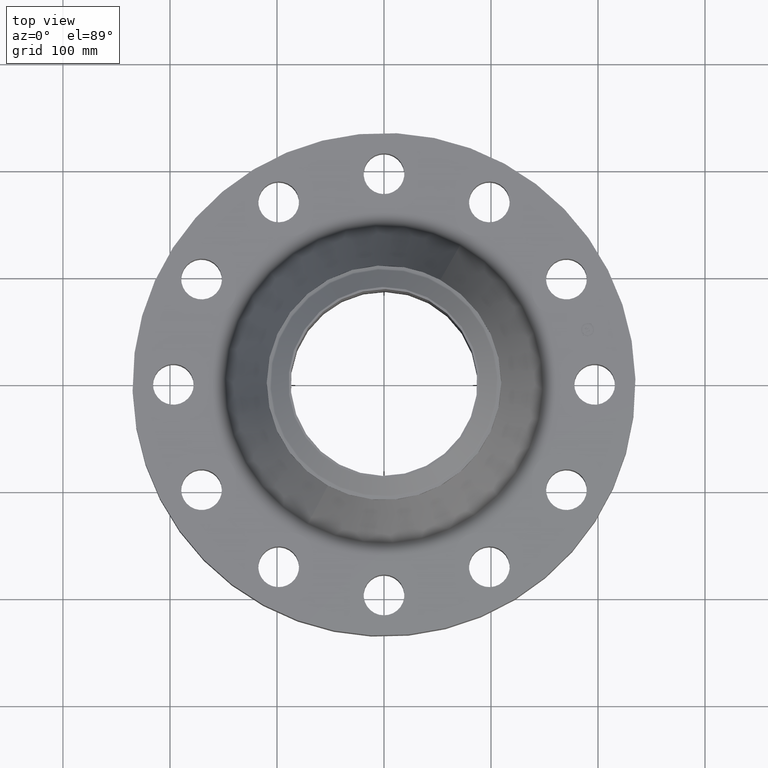
[diagram: clean part render]
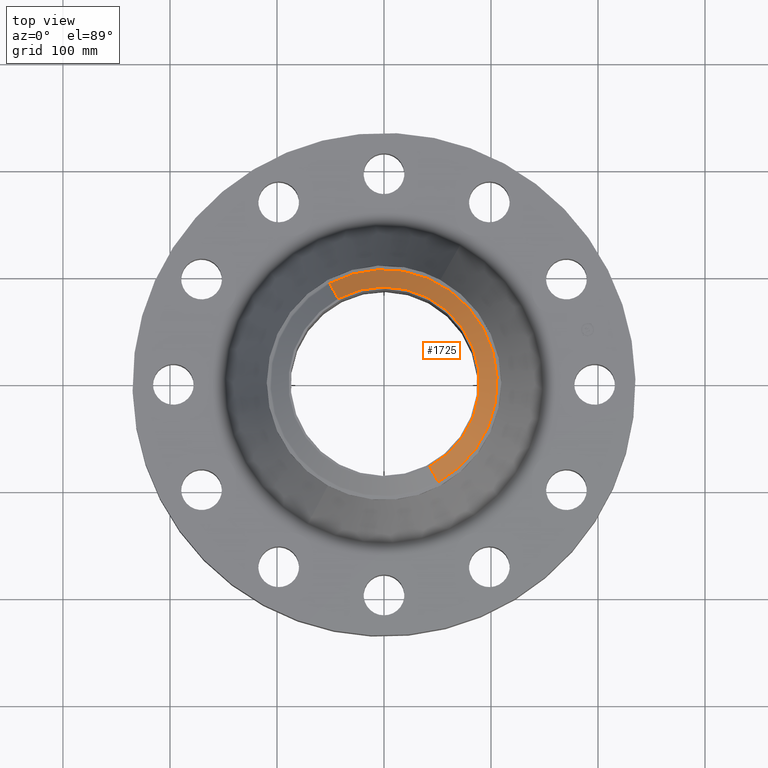
[diagram: same view with one face highlighted and labeled with its STEP entity id]
A machine part, top view. The second image highlights one B-rep face of the part: STEP entity #1725.
In plain terms, the highlighted conical surface has half-angle 52.5 deg.
Its self-contained STEP definition (entity closure, byte-faithful):
#1426=AXIS2_PLACEMENT_3D('Circle Axis2P3D',#1424,#1425,$) ;
#1698=AXIS2_PLACEMENT_3D('Cone Axis2P3D',#1695,#1696,#1697) ;
#1709=AXIS2_PLACEMENT_3D('Circle Axis2P3D',#1707,#1708,$) ;
#1424=CARTESIAN_POINT('Axis2P3D Location',(-2.79741234551E-016,2.82130224694E-011,6.38000000003)) ;
#1428=CARTESIAN_POINT('Vertex',(1.68577533137,-3.08579104563,6.38000000003)) ;
#1430=CARTESIAN_POINT('Vertex',(-1.68577533137,3.08579104564,6.38000000003)) ;
#1695=CARTESIAN_POINT('Axis2P3D Location',(0.,0.,6.38000000003)) ;
#1700=CARTESIAN_POINT('Line Origine',(1.84071663392,-3.36940919754,6.13201437259)) ;
#1704=CARTESIAN_POINT('Vertex',(1.99565793647,-3.65302734944,5.88402874516)) ;
#1707=CARTESIAN_POINT('Axis2P3D Location',(0.,0.,5.88402874515)) ;
#1711=CARTESIAN_POINT('Vertex',(-1.99565793647,3.65302734944,5.88402874515)) ;
#1714=CARTESIAN_POINT('Line Origine',(-1.84071663392,3.36940919754,6.13201437259)) ;
#1425=DIRECTION('Axis2P3D Direction',(0.,0.,-0.0393700787402)) ;
#1696=DIRECTION('Axis2P3D Direction',(-0.,-0.,-0.0393700787402)) ;
#1697=DIRECTION('Axis2P3D XDirection',(-0.0188750212049,0.0345504945626,0.)) ;
#1701=DIRECTION('Vector Direction',(0.014974561121,-0.02741075027,-0.023966985394)) ;
#1708=DIRECTION('Axis2P3D Direction',(0.,-0.,-0.0393700787402)) ;
#1715=DIRECTION('Vector Direction',(-0.014974561121,0.02741075027,-0.023966985394)) ;
#1702=VECTOR('Line Direction',#1701,0.0393700787402) ;
#1716=VECTOR('Line Direction',#1715,0.0393700787402) ;
#1720=ORIENTED_EDGE('',*,*,#1432,.F.) ;
#1721=ORIENTED_EDGE('',*,*,#1706,.T.) ;
#1722=ORIENTED_EDGE('',*,*,#1713,.T.) ;
#1723=ORIENTED_EDGE('',*,*,#1718,.F.) ;
#1725=ADVANCED_FACE('PartBody',(#1724),#1699,.T.) ;
#1427=CIRCLE('generated circle',#1426,3.51624015749) ;
#1710=CIRCLE('generated circle',#1709,4.16260248104) ;
#1699=CONICAL_SURFACE('Cone',#1698,3.51624015749,0.916297857297) ;
#1432=EDGE_CURVE('',#1429,#1431,#1427,.F.) ;
#1706=EDGE_CURVE('',#1429,#1705,#1703,.T.) ;
#1713=EDGE_CURVE('',#1705,#1712,#1710,.F.) ;
#1718=EDGE_CURVE('',#1431,#1712,#1717,.T.) ;
#1719=EDGE_LOOP('',(#1720,#1721,#1722,#1723)) ;
#1724=FACE_OUTER_BOUND('',#1719,.T.) ;
#1703=LINE('Line',#1700,#1702) ;
#1717=LINE('Line',#1714,#1716) ;
#1429=VERTEX_POINT('',#1428) ;
#1431=VERTEX_POINT('',#1430) ;
#1705=VERTEX_POINT('',#1704) ;
#1712=VERTEX_POINT('',#1711) ;